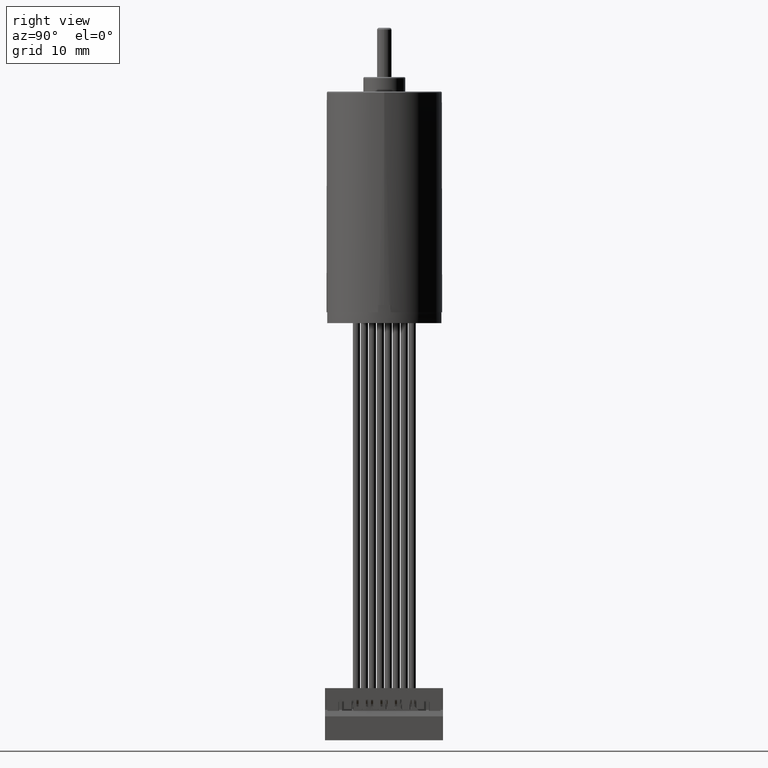
[diagram: clean part render]
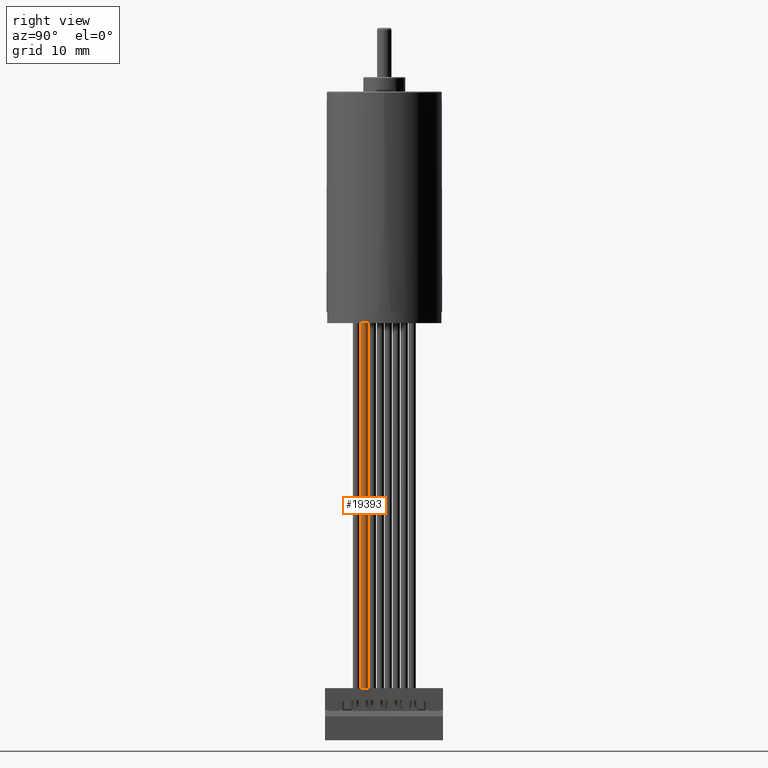
[diagram: same view with one face highlighted and labeled with its STEP entity id]
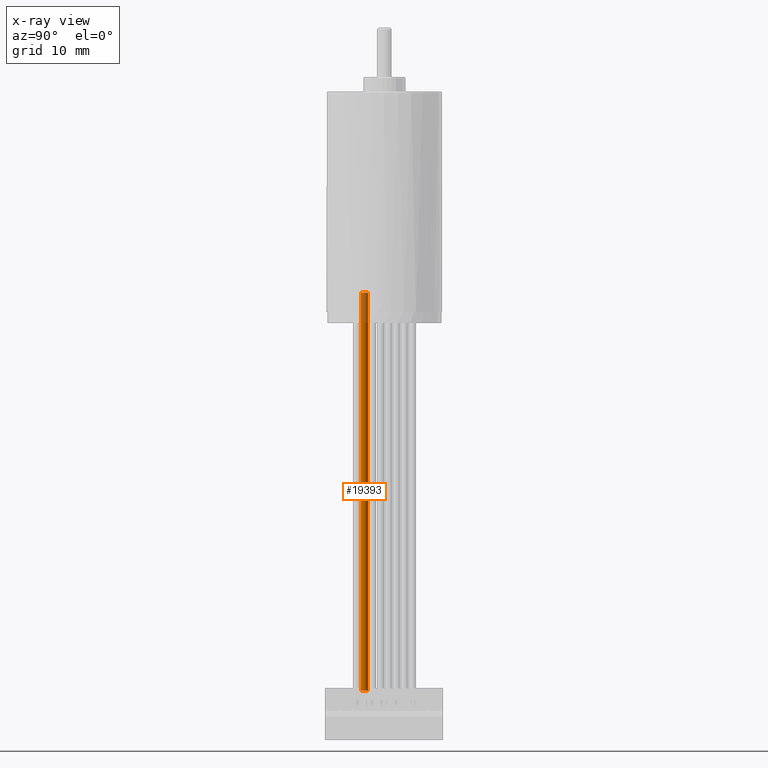
[diagram: x-ray of the same camera — body ghosted, the highlighted face saturated]
A machine part, right view. The second image highlights one B-rep face of the part: STEP entity #19393.
The next image is the same camera in x-ray: the body ghosted, the highlighted face saturated — about 8% of this face is hidden behind the body in this view.
In plain terms, the highlighted cylindrical surface (edge-blend (fillet) strip) has radius 0.5 mm, axis along (0, 0, -1).
Its self-contained STEP definition (entity closure, byte-faithful):
#17943=CARTESIAN_POINT('',(1.2E0,3.8E0,-2.75E0));
#17944=DIRECTION('',(1.E0,0.E0,0.E0));
#17945=DIRECTION('',(0.E0,0.E0,1.E0));
#17946=AXIS2_PLACEMENT_3D('',#17943,#17944,#17945);
#18109=CARTESIAN_POINT('',(5.62E1,3.8E0,-2.75E0));
#18110=DIRECTION('',(1.E0,0.E0,0.E0));
#18111=DIRECTION('',(0.E0,0.E0,1.E0));
#18112=AXIS2_PLACEMENT_3D('',#18109,#18110,#18111);
#18244=DIRECTION('',(1.E0,0.E0,0.E0));
#18245=VECTOR('',#18244,5.5E1);
#18246=CARTESIAN_POINT('',(1.2E0,3.8E0,-3.25E0));
#18247=LINE('',#18246,#18245);
#18248=DIRECTION('',(1.E0,0.E0,0.E0));
#18249=VECTOR('',#18248,5.5E1);
#18250=CARTESIAN_POINT('',(1.2E0,3.8E0,-2.25E0));
#18251=LINE('',#18250,#18249);
#18628=CARTESIAN_POINT('',(5.62E1,3.8E0,-3.25E0));
#18629=CARTESIAN_POINT('',(5.62E1,3.8E0,-2.25E0));
#18630=VERTEX_POINT('',#18628);
#18631=VERTEX_POINT('',#18629);
#18660=CARTESIAN_POINT('',(1.2E0,3.8E0,-3.25E0));
#18661=CARTESIAN_POINT('',(1.2E0,3.8E0,-2.25E0));
#18662=VERTEX_POINT('',#18660);
#18663=VERTEX_POINT('',#18661);
#19382=CARTESIAN_POINT('',(0.E0,3.8E0,-2.75E0));
#19383=DIRECTION('',(1.E0,0.E0,0.E0));
#19384=DIRECTION('',(0.E0,0.E0,-1.E0));
#19385=AXIS2_PLACEMENT_3D('',#19382,#19383,#19384);
#19386=CYLINDRICAL_SURFACE('',#19385,5.E-1);
#19387=ORIENTED_EDGE('',*,*,#18901,.F.);
#19388=ORIENTED_EDGE('',*,*,#19377,.T.);
#19389=ORIENTED_EDGE('',*,*,#19209,.T.);
#19390=ORIENTED_EDGE('',*,*,#19374,.F.);
#19391=EDGE_LOOP('',(#19387,#19388,#19389,#19390));
#19392=FACE_OUTER_BOUND('',#19391,.F.);
#19393=ADVANCED_FACE('',(#19392),#19386,.T.);
#17947=CIRCLE('',#17946,5.E-1);
#18113=CIRCLE('',#18112,5.E-1);
#18901=EDGE_CURVE('',#18663,#18662,#17947,.T.);
#19209=EDGE_CURVE('',#18631,#18630,#18113,.T.);
#19374=EDGE_CURVE('',#18662,#18630,#18247,.T.);
#19377=EDGE_CURVE('',#18663,#18631,#18251,.T.);